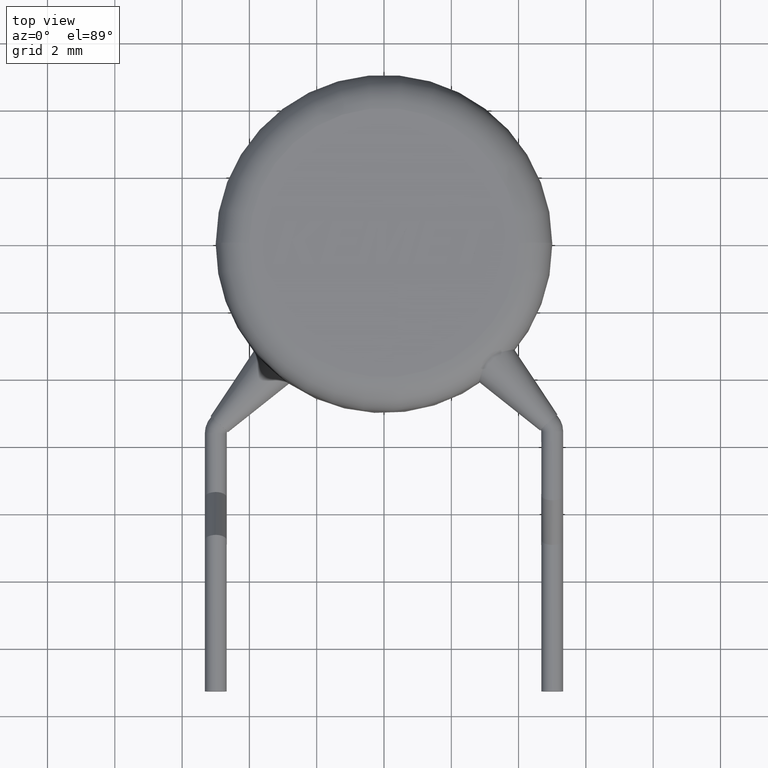
[diagram: clean part render]
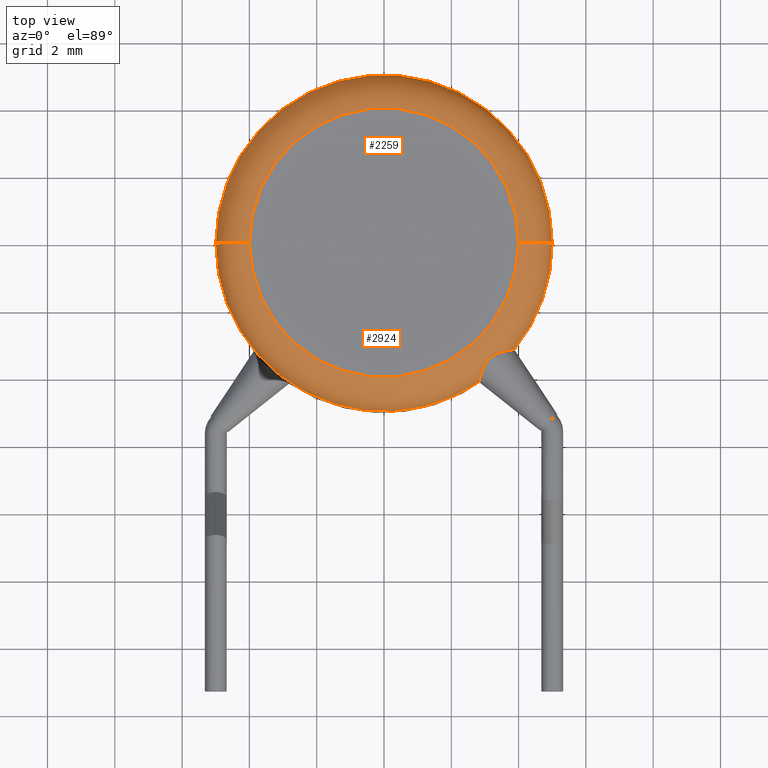
[diagram: same view with one multi-face feature highlighted, each face labeled with its STEP entity id]
A machine part, top view. The highlighted faces form ONE feature: a constant-radius fillet chain: 2 tangent blend faces with common blend radius 1 mm. The faces share edges in the B-rep.
Their STEP definitions:
[1] entity #2259 (Torus):
#41 = DIRECTION ( 'NONE',  ( -0.0000000000000000000, -0.0000000000000000000, -1.000000000000000000 ) ) ;
#109 = CIRCLE ( 'NONE', #283, 5.000000000000000000 ) ;
#262 = VERTEX_POINT ( 'NONE', #3473 ) ;
#283 = AXIS2_PLACEMENT_3D ( 'NONE', #3315, #41, #3603 ) ;
#392 = EDGE_CURVE ( 'NONE', #262, #3133, #709, .T. ) ;
#545 = AXIS2_PLACEMENT_3D ( 'NONE', #3033, #3097, #2105 ) ;
#661 = DIRECTION ( 'NONE',  ( 1.000000000000000000, 0.0000000000000000000, 0.0000000000000000000 ) ) ;
#709 = CIRCLE ( 'NONE', #891, 4.000000000000000000 ) ;
#760 = ORIENTED_EDGE ( 'NONE', *, *, #3865, .T. ) ;
#779 = VERTEX_POINT ( 'NONE', #3755 ) ;
#780 = DIRECTION ( 'NONE',  ( 0.0000000000000000000, 0.0000000000000000000, -1.000000000000000000 ) ) ;
#891 = AXIS2_PLACEMENT_3D ( 'NONE', #2267, #3951, #661 ) ;
#1036 = EDGE_CURVE ( 'NONE', #3038, #262, #2081, .T. ) ;
#1183 = CARTESIAN_POINT ( 'NONE',  ( -4.000000000000000000, 5.510910596163088600E-016, 5.000000000000000000 ) ) ;
#1889 = DIRECTION ( 'NONE',  ( -1.000000000000000000, 1.224646799147353500E-016, 0.0000000000000000000 ) ) ;
#1928 = ORIENTED_EDGE ( 'NONE', *, *, #2738, .F. ) ;
#1995 = AXIS2_PLACEMENT_3D ( 'NONE', #3457, #4104, #780 ) ;
#2081 = CIRCLE ( 'NONE', #1995, 1.000000000000000000 ) ;
#2099 = FACE_OUTER_BOUND ( 'NONE', #2387, .T. ) ;
#2105 = DIRECTION ( 'NONE',  ( 1.000000000000000000, 0.0000000000000000000, 0.0000000000000000000 ) ) ;
#2259 = ADVANCED_FACE ( 'NONE', ( #2099 ), #2658, .T. ) ;
#2267 = CARTESIAN_POINT ( 'NONE',  ( 0.0000000000000000000, 0.0000000000000000000, 5.000000000000000000 ) ) ;
#2387 = EDGE_LOOP ( 'NONE', ( #1928, #760, #4141, #2836 ) ) ;
#2577 = CIRCLE ( 'NONE', #2844, 1.000000000000000000 ) ;
#2658 = TOROIDAL_SURFACE ( 'NONE', #545, 4.000000000000000000, 1.000000000000000000 ) ;
#2738 = EDGE_CURVE ( 'NONE', #779, #3038, #109, .T. ) ;
#2836 = ORIENTED_EDGE ( 'NONE', *, *, #1036, .F. ) ;
#2844 = AXIS2_PLACEMENT_3D ( 'NONE', #3547, #3239, #1889 ) ;
#3033 = CARTESIAN_POINT ( 'NONE',  ( 0.0000000000000000000, 0.0000000000000000000, 4.000000000000000000 ) ) ;
#3038 = VERTEX_POINT ( 'NONE', #3291 ) ;
#3097 = DIRECTION ( 'NONE',  ( 0.0000000000000000000, 0.0000000000000000000, 1.000000000000000000 ) ) ;
#3133 = VERTEX_POINT ( 'NONE', #1183 ) ;
#3239 = DIRECTION ( 'NONE',  ( 1.224646799147353200E-016, 1.000000000000000000, -0.0000000000000000000 ) ) ;
#3291 = CARTESIAN_POINT ( 'NONE',  ( 5.000000000000000000, 6.123233995736766300E-016, 4.000000000000000000 ) ) ;
#3315 = CARTESIAN_POINT ( 'NONE',  ( 0.0000000000000000000, 0.0000000000000000000, 4.000000000000000000 ) ) ;
#3457 = CARTESIAN_POINT ( 'NONE',  ( 4.000000000000000000, 0.0000000000000000000, 4.000000000000000000 ) ) ;
#3473 = CARTESIAN_POINT ( 'NONE',  ( 4.000000000000000000, 0.0000000000000000000, 5.000000000000000000 ) ) ;
#3547 = CARTESIAN_POINT ( 'NONE',  ( -4.000000000000000000, 4.898587196589412800E-016, 4.000000000000000000 ) ) ;
#3603 = DIRECTION ( 'NONE',  ( 1.000000000000000000, 0.0000000000000000000, 0.0000000000000000000 ) ) ;
#3755 = CARTESIAN_POINT ( 'NONE',  ( -5.000000000000000000, 0.0000000000000000000, 4.000000000000000000 ) ) ;
#3865 = EDGE_CURVE ( 'NONE', #779, #3133, #2577, .T. ) ;
#3951 = DIRECTION ( 'NONE',  ( 0.0000000000000000000, 0.0000000000000000000, 1.000000000000000000 ) ) ;
#4104 = DIRECTION ( 'NONE',  ( 0.0000000000000000000, -1.000000000000000000, 0.0000000000000000000 ) ) ;
#4141 = ORIENTED_EDGE ( 'NONE', *, *, #392, .F. ) ;
[2] entity #2924 (Torus):
#262 = VERTEX_POINT ( 'NONE', #3473 ) ;
#451 = ORIENTED_EDGE ( 'NONE', *, *, #1728, .F. ) ;
#485 = EDGE_LOOP ( 'NONE', ( #968, #1543, #668, #451, #3297, #3195 ) ) ;
#514 = B_SPLINE_CURVE_WITH_KNOTS ( 'NONE', 3,
 ( #1180, #2133, #3805, #842, #1146, #2121, #4137, #2818, #2747, #1801, #868, #808, #1816, #527, #2799, #3444, #3495, #3791 ),
 .UNSPECIFIED., .F., .F.,
 ( 4, 2, 2, 2, 2, 2, 2, 2, 4 ),
 ( 1.970102615201656900E-007, 0.0002984710049463915200, 0.0005967449996312629300, 0.0008950189943161343400, 0.001193292989001005500, 0.001491566983685876800, 0.001789840978370748400, 0.002088114973055619900, 0.002386388967740491200 ),
 .UNSPECIFIED. ) ;
#527 = CARTESIAN_POINT ( 'NONE',  ( 3.705754759512830200, -3.192957098633619800, 4.460782452412916000 ) ) ;
#557 = AXIS2_PLACEMENT_3D ( 'NONE', #2903, #2285, #2971 ) ;
#585 = CARTESIAN_POINT ( 'NONE',  ( 0.0000000000000000000, 0.0000000000000000000, 4.000000000000000000 ) ) ;
#607 = CIRCLE ( 'NONE', #557, 4.000000000000000000 ) ;
#668 = ORIENTED_EDGE ( 'NONE', *, *, #4225, .T. ) ;
#779 = VERTEX_POINT ( 'NONE', #3755 ) ;
#780 = DIRECTION ( 'NONE',  ( 0.0000000000000000000, 0.0000000000000000000, -1.000000000000000000 ) ) ;
#808 = CARTESIAN_POINT ( 'NONE',  ( 3.481130804580165000, -3.245703353841551800, 4.653795400948204100 ) ) ;
#811 = CARTESIAN_POINT ( 'NONE',  ( 2.823058014839938700, -4.126783668287930400, 3.999999999999995600 ) ) ;
#840 = VERTEX_POINT ( 'NONE', #811 ) ;
#842 = CARTESIAN_POINT ( 'NONE',  ( 2.850878378383851200, -4.021783389064991000, 4.380392621455500900 ) ) ;
#868 = CARTESIAN_POINT ( 'NONE',  ( 3.309192359788208000, -3.310854318465763500, 4.735067848221363300 ) ) ;
#931 = DIRECTION ( 'NONE',  ( -0.0000000000000000000, -0.0000000000000000000, -1.000000000000000000 ) ) ;
#968 = ORIENTED_EDGE ( 'NONE', *, *, #3865, .F. ) ;
#1036 = EDGE_CURVE ( 'NONE', #3038, #262, #2081, .T. ) ;
#1069 = CIRCLE ( 'NONE', #3645, 5.000000000000000000 ) ;
#1146 = CARTESIAN_POINT ( 'NONE',  ( 2.867117632418572100, -3.962399801891338200, 4.461917986621419800 ) ) ;
#1180 = CARTESIAN_POINT ( 'NONE',  ( 2.823058014839938700, -4.126783668287930400, 3.999999999999995600 ) ) ;
#1183 = CARTESIAN_POINT ( 'NONE',  ( -4.000000000000000000, 5.510910596163088600E-016, 5.000000000000000000 ) ) ;
#1254 = DIRECTION ( 'NONE',  ( 1.000000000000000000, 0.0000000000000000000, 0.0000000000000000000 ) ) ;
#1305 = AXIS2_PLACEMENT_3D ( 'NONE', #585, #931, #1254 ) ;
#1363 = CARTESIAN_POINT ( 'NONE',  ( 0.0000000000000000000, 0.0000000000000000000, 4.000000000000000000 ) ) ;
#1397 = DIRECTION ( 'NONE',  ( 0.0000000000000000000, 0.0000000000000000000, 1.000000000000000000 ) ) ;
#1543 = ORIENTED_EDGE ( 'NONE', *, *, #3853, .F. ) ;
#1728 = EDGE_CURVE ( 'NONE', #3038, #2696, #1069, .T. ) ;
#1756 = EDGE_CURVE ( 'NONE', #3133, #262, #607, .T. ) ;
#1801 = CARTESIAN_POINT ( 'NONE',  ( 3.219627429390280700, -3.357306775829839400, 4.759475957023025400 ) ) ;
#1816 = CARTESIAN_POINT ( 'NONE',  ( 3.562386007480778700, -3.225339443313981000, 4.598550920427596700 ) ) ;
#1889 = DIRECTION ( 'NONE',  ( -1.000000000000000000, 1.224646799147353500E-016, 0.0000000000000000000 ) ) ;
#1995 = AXIS2_PLACEMENT_3D ( 'NONE', #3457, #4104, #780 ) ;
#2081 = CIRCLE ( 'NONE', #1995, 1.000000000000000000 ) ;
#2121 = CARTESIAN_POINT ( 'NONE',  ( 2.911124956685535700, -3.823719998487129500, 4.598129500626649600 ) ) ;
#2133 = CARTESIAN_POINT ( 'NONE',  ( 2.823058014839938700, -4.126783668287931300, 4.100930811344155400 ) ) ;
#2285 = DIRECTION ( 'NONE',  ( 0.0000000000000000000, 0.0000000000000000000, 1.000000000000000000 ) ) ;
#2577 = CIRCLE ( 'NONE', #2844, 1.000000000000000000 ) ;
#2594 = AXIS2_PLACEMENT_3D ( 'NONE', #3719, #1397, #3700 ) ;
#2605 = FACE_OUTER_BOUND ( 'NONE', #485, .T. ) ;
#2696 = VERTEX_POINT ( 'NONE', #3619 ) ;
#2733 = CIRCLE ( 'NONE', #1305, 5.000000000000000000 ) ;
#2747 = CARTESIAN_POINT ( 'NONE',  ( 3.072059291622479400, -3.492750023696933800, 4.759536599402992800 ) ) ;
#2799 = CARTESIAN_POINT ( 'NONE',  ( 3.764941737286543700, -3.182103013925655000, 4.381043409379168800 ) ) ;
#2818 = CARTESIAN_POINT ( 'NONE',  ( 3.017379956470826100, -3.579475057736489800, 4.734533928053537000 ) ) ;
#2844 = AXIS2_PLACEMENT_3D ( 'NONE', #3547, #3239, #1889 ) ;
#2903 = CARTESIAN_POINT ( 'NONE',  ( 0.0000000000000000000, 0.0000000000000000000, 5.000000000000000000 ) ) ;
#2924 = ADVANCED_FACE ( 'NONE', ( #2605 ), #4004, .T. ) ;
#2971 = DIRECTION ( 'NONE',  ( 1.000000000000000000, 0.0000000000000000000, 0.0000000000000000000 ) ) ;
#3038 = VERTEX_POINT ( 'NONE', #3291 ) ;
#3133 = VERTEX_POINT ( 'NONE', #1183 ) ;
#3195 = ORIENTED_EDGE ( 'NONE', *, *, #1756, .F. ) ;
#3239 = DIRECTION ( 'NONE',  ( 1.224646799147353200E-016, 1.000000000000000000, -0.0000000000000000000 ) ) ;
#3291 = CARTESIAN_POINT ( 'NONE',  ( 5.000000000000000000, 6.123233995736766300E-016, 4.000000000000000000 ) ) ;
#3297 = ORIENTED_EDGE ( 'NONE', *, *, #1036, .T. ) ;
#3444 = CARTESIAN_POINT ( 'NONE',  ( 3.849475709517153500, -3.166952976828153200, 4.198721470698605400 ) ) ;
#3457 = CARTESIAN_POINT ( 'NONE',  ( 4.000000000000000000, 0.0000000000000000000, 4.000000000000000000 ) ) ;
#3473 = CARTESIAN_POINT ( 'NONE',  ( 4.000000000000000000, 0.0000000000000000000, 5.000000000000000000 ) ) ;
#3495 = CARTESIAN_POINT ( 'NONE',  ( 3.872187539807354200, -3.163252069715728300, 4.101131522803673800 ) ) ;
#3547 = CARTESIAN_POINT ( 'NONE',  ( -4.000000000000000000, 4.898587196589412800E-016, 4.000000000000000000 ) ) ;
#3619 = CARTESIAN_POINT ( 'NONE',  ( 3.872187539807329300, -3.163252069715731800, 4.000000000000000000 ) ) ;
#3645 = AXIS2_PLACEMENT_3D ( 'NONE', #1363, #3957, #3668 ) ;
#3668 = DIRECTION ( 'NONE',  ( 1.000000000000000000, 0.0000000000000000000, 0.0000000000000000000 ) ) ;
#3700 = DIRECTION ( 'NONE',  ( 1.000000000000000000, 0.0000000000000000000, 0.0000000000000000000 ) ) ;
#3719 = CARTESIAN_POINT ( 'NONE',  ( 0.0000000000000000000, 0.0000000000000000000, 4.000000000000000000 ) ) ;
#3755 = CARTESIAN_POINT ( 'NONE',  ( -5.000000000000000000, 0.0000000000000000000, 4.000000000000000000 ) ) ;
#3791 = CARTESIAN_POINT ( 'NONE',  ( 3.872187539807329300, -3.163252069715731800, 4.000000000000000000 ) ) ;
#3805 = CARTESIAN_POINT ( 'NONE',  ( 2.828800223545334900, -4.103994438943703700, 4.199846712586088800 ) ) ;
#3853 = EDGE_CURVE ( 'NONE', #840, #779, #2733, .T. ) ;
#3865 = EDGE_CURVE ( 'NONE', #779, #3133, #2577, .T. ) ;
#3957 = DIRECTION ( 'NONE',  ( -0.0000000000000000000, -0.0000000000000000000, -1.000000000000000000 ) ) ;
#4004 = TOROIDAL_SURFACE ( 'NONE', #2594, 4.000000000000000000, 1.000000000000000000 ) ;
#4104 = DIRECTION ( 'NONE',  ( 0.0000000000000000000, -1.000000000000000000, 0.0000000000000000000 ) ) ;
#4137 = CARTESIAN_POINT ( 'NONE',  ( 2.938851642330377900, -3.743251600751105600, 4.654214960306696900 ) ) ;
#4225 = EDGE_CURVE ( 'NONE', #840, #2696, #514, .T. ) ;